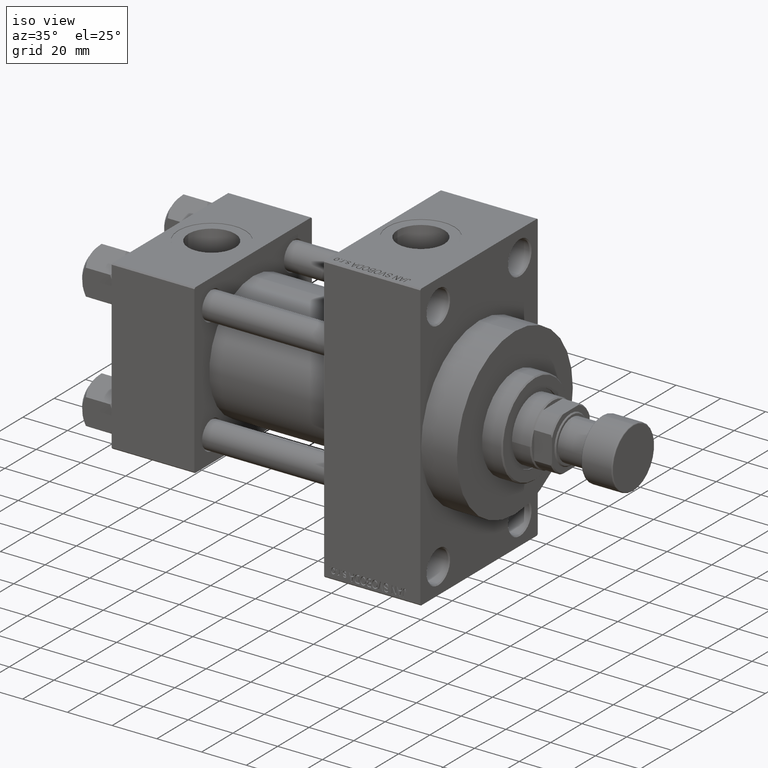
[diagram: clean part render]
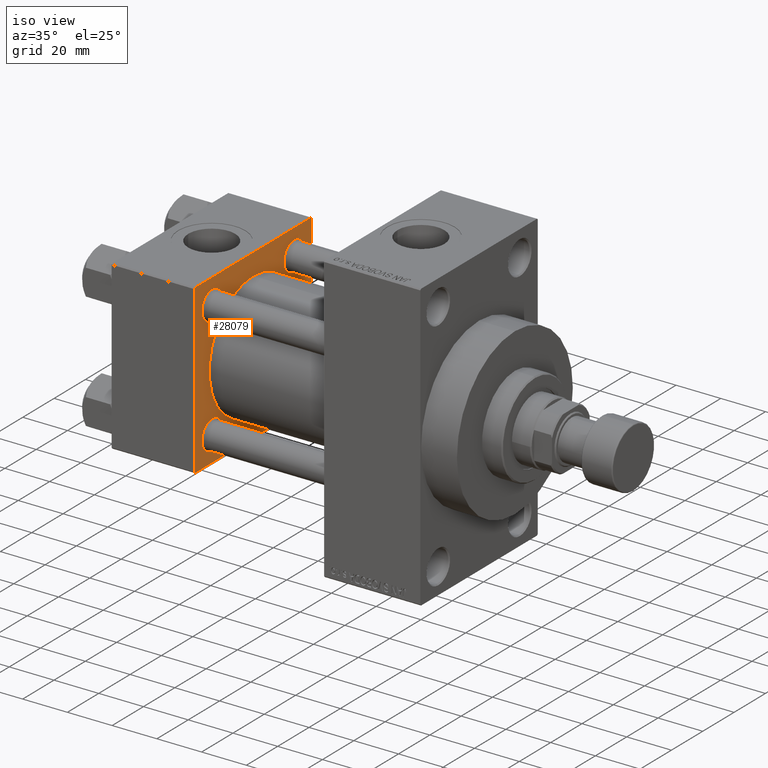
[diagram: same view with one face highlighted and labeled with its STEP entity id]
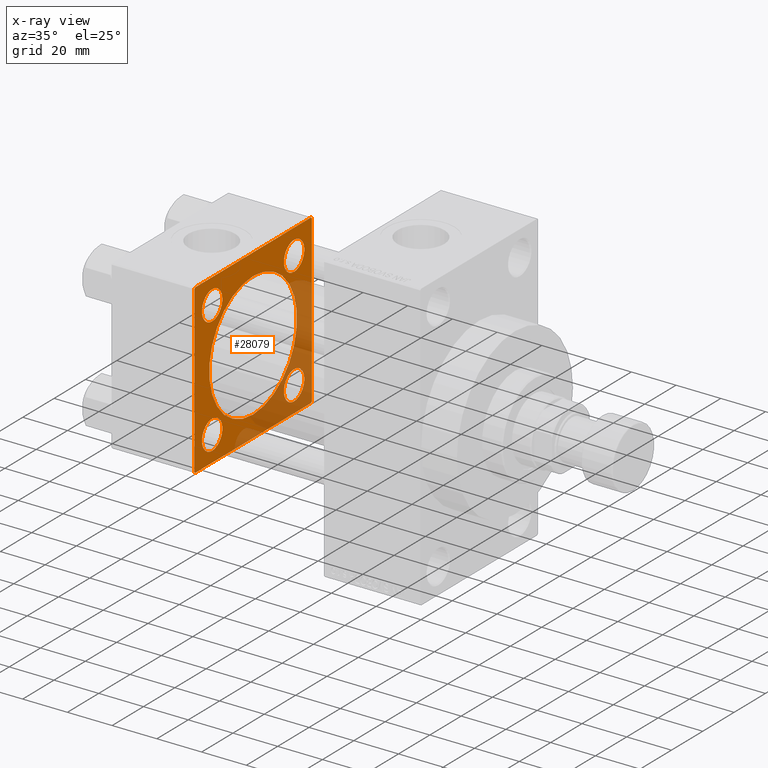
[diagram: x-ray of the same camera — body ghosted, the highlighted face saturated]
A machine part, iso view. The second image highlights one B-rep face of the part: STEP entity #28079.
The next image is the same camera in x-ray: the body ghosted, the highlighted face saturated — about 32% of this face is hidden behind the body in this view.
In plain terms, the highlighted planar face has unit normal (-1, 0, 0).
Its self-contained STEP definition (entity closure, byte-faithful):
#332 = CIRCLE ( 'NONE', #34187, 6.500000000000064837 ) ;
#607 = VECTOR ( 'NONE', #26519, 1000.000000000000000 ) ;
#1061 = ORIENTED_EDGE ( 'NONE', *, *, #39571, .T. ) ;
#1213 = CARTESIAN_POINT ( 'NONE',  ( 37.00000000000000000, 36.99999999999999289, 37.50000000000000000 ) ) ;
#1438 = CARTESIAN_POINT ( 'NONE',  ( 37.00000000000000000, 0.000000000000000000, 0.000000000000000000 ) ) ;
#1440 = VERTEX_POINT ( 'NONE', #46281 ) ;
#1653 = CARTESIAN_POINT ( 'NONE',  ( 37.00000000000000000, 37.49999999999999289, -37.50000000000000000 ) ) ;
#1906 = CARTESIAN_POINT ( 'NONE',  ( 37.00000000000000000, -26.14999999999999147, 26.15000000000000924 ) ) ;
#2672 = CIRCLE ( 'NONE', #38075, 6.500000000000002665 ) ;
#2782 = DIRECTION ( 'NONE',  ( 1.000000000000000000, -0.000000000000000000, 0.000000000000000000 ) ) ;
#3040 = CARTESIAN_POINT ( 'NONE',  ( 37.00000000000000000, -37.00000000000000711, 37.49999999999999289 ) ) ;
#3747 = CARTESIAN_POINT ( 'NONE',  ( 37.00000000000000000, 37.49999999999999289, -36.99999999999998579 ) ) ;
#4278 = AXIS2_PLACEMENT_3D ( 'NONE', #10001, #21571, #32659 ) ;
#4459 = ORIENTED_EDGE ( 'NONE', *, *, #4953, .F. ) ;
#4506 = VERTEX_POINT ( 'NONE', #32627 ) ;
#4953 = EDGE_CURVE ( 'NONE', #18720, #8059, #5469, .T. ) ;
#5325 = CARTESIAN_POINT ( 'NONE',  ( 37.00000000000000000, -37.50000000000000711, 36.99999999999999289 ) ) ;
#5469 = LINE ( 'NONE', #46200, #30318 ) ;
#6163 = FACE_BOUND ( 'NONE', #18886, .T. ) ;
#6183 = AXIS2_PLACEMENT_3D ( 'NONE', #36072, #42814, #10277 ) ;
#6199 = VERTEX_POINT ( 'NONE', #29537 ) ;
#6233 = EDGE_CURVE ( 'NONE', #6199, #38171, #2672, .T. ) ;
#6484 = DIRECTION ( 'NONE',  ( 0.000000000000000000, 0.000000000000000000, 1.000000000000000000 ) ) ;
#6685 = CIRCLE ( 'NONE', #41318, 28.00000000000000000 ) ;
#6864 = ORIENTED_EDGE ( 'NONE', *, *, #8165, .T. ) ;
#6879 = CARTESIAN_POINT ( 'NONE',  ( 37.00000000000000000, 26.14999999999999858, 26.15000000000000213 ) ) ;
#6968 = CARTESIAN_POINT ( 'NONE',  ( 37.00000000000000000, 36.99999999999997868, -37.50000000000000000 ) ) ;
#7701 = LINE ( 'NONE', #33718, #43656 ) ;
#7749 = VERTEX_POINT ( 'NONE', #17756 ) ;
#8059 = VERTEX_POINT ( 'NONE', #24944 ) ;
#8165 = EDGE_CURVE ( 'NONE', #11370, #25171, #38844, .T. ) ;
#8167 = EDGE_CURVE ( 'NONE', #13931, #4506, #13472, .T. ) ;
#8195 = DIRECTION ( 'NONE',  ( -0.000000000000000000, 0.000000000000000000, 1.000000000000000000 ) ) ;
#8286 = DIRECTION ( 'NONE',  ( 0.000000000000000000, 0.000000000000000000, 1.000000000000000000 ) ) ;
#8527 = ORIENTED_EDGE ( 'NONE', *, *, #6233, .T. ) ;
#9155 = CARTESIAN_POINT ( 'NONE',  ( 37.00000000000000000, -26.14999999999999147, 32.65000000000007674 ) ) ;
#9430 = EDGE_CURVE ( 'NONE', #36830, #20641, #10909, .T. ) ;
#9779 = PLANE ( 'NONE',  #13725 ) ;
#10001 = CARTESIAN_POINT ( 'NONE',  ( 37.00000000000000000, -26.14999999999999147, -26.15000000000000924 ) ) ;
#10174 = ORIENTED_EDGE ( 'NONE', *, *, #35787, .T. ) ;
#10277 = DIRECTION ( 'NONE',  ( 0.000000000000000000, 0.000000000000000000, 1.000000000000000000 ) ) ;
#10575 = DIRECTION ( 'NONE',  ( 0.000000000000000000, 0.000000000000000000, 1.000000000000000000 ) ) ;
#10909 = LINE ( 'NONE', #26102, #37883 ) ;
#11370 = VERTEX_POINT ( 'NONE', #21884 ) ;
#11688 = CIRCLE ( 'NONE', #36308, 6.500000000000002665 ) ;
#12157 = DIRECTION ( 'NONE',  ( -1.000000000000000000, 0.000000000000000000, -0.000000000000000000 ) ) ;
#12180 = DIRECTION ( 'NONE',  ( -1.000000000000000000, 0.000000000000000000, -0.000000000000000000 ) ) ;
#12948 = VERTEX_POINT ( 'NONE', #44176 ) ;
#13326 = ORIENTED_EDGE ( 'NONE', *, *, #8167, .F. ) ;
#13458 = EDGE_CURVE ( 'NONE', #7749, #14615, #332, .T. ) ;
#13472 = CIRCLE ( 'NONE', #19651, 28.00000000000000000 ) ;
#13725 = AXIS2_PLACEMENT_3D ( 'NONE', #1438, #15416, #8195 ) ;
#13931 = VERTEX_POINT ( 'NONE', #34863 ) ;
#14355 = CIRCLE ( 'NONE', #41290, 6.500000000000057732 ) ;
#14615 = VERTEX_POINT ( 'NONE', #9155 ) ;
#14674 = DIRECTION ( 'NONE',  ( 0.000000000000000000, 0.000000000000000000, 1.000000000000000000 ) ) ;
#15337 = CARTESIAN_POINT ( 'NONE',  ( 37.00000000000000000, -37.00000000000002132, -37.50000000000000711 ) ) ;
#15416 = DIRECTION ( 'NONE',  ( -1.000000000000000000, 0.000000000000000000, -0.000000000000000000 ) ) ;
#16174 = VECTOR ( 'NONE', #47659, 1000.000000000000114 ) ;
#17694 = ORIENTED_EDGE ( 'NONE', *, *, #23339, .F. ) ;
#17756 = CARTESIAN_POINT ( 'NONE',  ( 37.00000000000000000, -26.14999999999999147, 19.64999999999994529 ) ) ;
#18285 = CARTESIAN_POINT ( 'NONE',  ( 37.00000000000000000, 26.14999999999999858, -26.15000000000000213 ) ) ;
#18720 = VERTEX_POINT ( 'NONE', #36397 ) ;
#18886 = EDGE_LOOP ( 'NONE', ( #13326, #17694 ) ) ;
#19269 = FACE_BOUND ( 'NONE', #39138, .T. ) ;
#19651 = AXIS2_PLACEMENT_3D ( 'NONE', #35788, #2782, #32179 ) ;
#20641 = VERTEX_POINT ( 'NONE', #38149 ) ;
#20893 = CARTESIAN_POINT ( 'NONE',  ( 37.00000000000000000, -37.50000000000000711, 36.99999999999999289 ) ) ;
#20899 = CARTESIAN_POINT ( 'NONE',  ( 37.00000000000000000, 26.14999999999999858, 19.64999999999999858 ) ) ;
#21323 = ORIENTED_EDGE ( 'NONE', *, *, #31986, .T. ) ;
#21571 = DIRECTION ( 'NONE',  ( -1.000000000000000000, 0.000000000000000000, -0.000000000000000000 ) ) ;
#21582 = DIRECTION ( 'NONE',  ( -1.000000000000000000, 0.000000000000000000, -0.000000000000000000 ) ) ;
#21884 = CARTESIAN_POINT ( 'NONE',  ( 37.00000000000000000, -26.14999999999999147, -32.65000000000006963 ) ) ;
#22617 = EDGE_CURVE ( 'NONE', #25171, #11370, #14355, .T. ) ;
#22789 = DIRECTION ( 'NONE',  ( 0.000000000000000000, 0.000000000000000000, 1.000000000000000000 ) ) ;
#23045 = ORIENTED_EDGE ( 'NONE', *, *, #24966, .F. ) ;
#23339 = EDGE_CURVE ( 'NONE', #4506, #13931, #6685, .T. ) ;
#24098 = CIRCLE ( 'NONE', #34858, 6.500000000000002665 ) ;
#24359 = EDGE_CURVE ( 'NONE', #20641, #46097, #7701, .T. ) ;
#24455 = EDGE_LOOP ( 'NONE', ( #6864, #38426 ) ) ;
#24778 = CARTESIAN_POINT ( 'NONE',  ( 37.00000000000000000, 37.49999999999999289, 37.50000000000000000 ) ) ;
#24800 = CARTESIAN_POINT ( 'NONE',  ( 37.00000000000000000, -2.602085213965210642E-15, 0.000000000000000000 ) ) ;
#24944 = CARTESIAN_POINT ( 'NONE',  ( 37.00000000000000000, 37.49999999999999289, -36.99999999999998579 ) ) ;
#24957 = EDGE_LOOP ( 'NONE', ( #47288, #8527 ) ) ;
#24966 = EDGE_CURVE ( 'NONE', #42037, #46097, #37341, .T. ) ;
#25171 = VERTEX_POINT ( 'NONE', #39942 ) ;
#25375 = CIRCLE ( 'NONE', #34618, 6.500000000000002665 ) ;
#25380 = DIRECTION ( 'NONE',  ( 0.000000000000000000, 9.251858538542971581E-17, -1.000000000000000000 ) ) ;
#26102 = CARTESIAN_POINT ( 'NONE',  ( 37.00000000000000000, -37.50000000000000711, 37.49999999999999289 ) ) ;
#26519 = DIRECTION ( 'NONE',  ( 0.000000000000000000, -1.000000000000000000, -9.251858538542972814E-17 ) ) ;
#26523 = FACE_OUTER_BOUND ( 'NONE', #26629, .T. ) ;
#26629 = EDGE_LOOP ( 'NONE', ( #23045, #21323, #4459, #31446, #1061, #45182, #44674, #32393 ) ) ;
#26944 = VERTEX_POINT ( 'NONE', #35633 ) ;
#26989 = CIRCLE ( 'NONE', #6183, 6.500000000000064837 ) ;
#27324 = ORIENTED_EDGE ( 'NONE', *, *, #29880, .T. ) ;
#28079 = ADVANCED_FACE ( 'NONE', ( #44815, #19269, #31714, #38289, #6163, #26523 ), #9779, .F. ) ;
#28649 = DIRECTION ( 'NONE',  ( -1.000000000000000000, 0.000000000000000000, -0.000000000000000000 ) ) ;
#29006 = EDGE_CURVE ( 'NONE', #18720, #1440, #38521, .T. ) ;
#29537 = CARTESIAN_POINT ( 'NONE',  ( 37.00000000000000000, 26.14999999999999858, 32.65000000000001279 ) ) ;
#29775 = LINE ( 'NONE', #3747, #42985 ) ;
#29810 = EDGE_LOOP ( 'NONE', ( #39028, #10174 ) ) ;
#29880 = EDGE_CURVE ( 'NONE', #12948, #26944, #25375, .T. ) ;
#29955 = VECTOR ( 'NONE', #31070, 1000.000000000000114 ) ;
#30318 = VECTOR ( 'NONE', #45967, 1000.000000000000000 ) ;
#30854 = EDGE_CURVE ( 'NONE', #47336, #36830, #43549, .T. ) ;
#31070 = DIRECTION ( 'NONE',  ( 0.000000000000000000, -0.7071067811865474617, 0.7071067811865474617 ) ) ;
#31317 = DIRECTION ( 'NONE',  ( -1.000000000000000000, 0.000000000000000000, -0.000000000000000000 ) ) ;
#31339 = ORIENTED_EDGE ( 'NONE', *, *, #39020, .T. ) ;
#31446 = ORIENTED_EDGE ( 'NONE', *, *, #29006, .T. ) ;
#31714 = FACE_BOUND ( 'NONE', #29810, .T. ) ;
#31986 = EDGE_CURVE ( 'NONE', #42037, #8059, #29775, .T. ) ;
#32179 = DIRECTION ( 'NONE',  ( 0.000000000000000000, 0.000000000000000000, 1.000000000000000000 ) ) ;
#32393 = ORIENTED_EDGE ( 'NONE', *, *, #24359, .T. ) ;
#32627 = CARTESIAN_POINT ( 'NONE',  ( 37.00000000000000000, 8.269258236473776482E-16, -28.00000000000000000 ) ) ;
#32659 = DIRECTION ( 'NONE',  ( 0.000000000000000000, 0.000000000000000000, 1.000000000000000000 ) ) ;
#32992 = DIRECTION ( 'NONE',  ( -1.000000000000000000, 0.000000000000000000, -0.000000000000000000 ) ) ;
#33718 = CARTESIAN_POINT ( 'NONE',  ( 37.00000000000000000, -37.00000000000002132, -37.50000000000000711 ) ) ;
#34187 = AXIS2_PLACEMENT_3D ( 'NONE', #1906, #31317, #42853 ) ;
#34570 = DIRECTION ( 'NONE',  ( 0.000000000000000000, 0.000000000000000000, 1.000000000000000000 ) ) ;
#34618 = AXIS2_PLACEMENT_3D ( 'NONE', #18285, #32992, #14674 ) ;
#34858 = AXIS2_PLACEMENT_3D ( 'NONE', #42025, #12180, #34570 ) ;
#34863 = CARTESIAN_POINT ( 'NONE',  ( 37.00000000000000000, -2.602085213965210642E-15, 28.00000000000000000 ) ) ;
#35633 = CARTESIAN_POINT ( 'NONE',  ( 37.00000000000000000, 26.14999999999999858, -19.65000000000000213 ) ) ;
#35787 = EDGE_CURVE ( 'NONE', #14615, #7749, #26989, .T. ) ;
#35788 = CARTESIAN_POINT ( 'NONE',  ( 37.00000000000000000, -2.602085213965210642E-15, 0.000000000000000000 ) ) ;
#36072 = CARTESIAN_POINT ( 'NONE',  ( 37.00000000000000000, -26.14999999999999147, 26.15000000000000924 ) ) ;
#36308 = AXIS2_PLACEMENT_3D ( 'NONE', #45398, #12157, #8286 ) ;
#36374 = EDGE_CURVE ( 'NONE', #38171, #6199, #11688, .T. ) ;
#36397 = CARTESIAN_POINT ( 'NONE',  ( 37.00000000000000000, 37.49999999999999289, 37.00000000000000000 ) ) ;
#36750 = DIRECTION ( 'NONE',  ( -0.000000000000000000, 0.7071067811865474617, 0.7071067811865474617 ) ) ;
#36830 = VERTEX_POINT ( 'NONE', #5325 ) ;
#37341 = LINE ( 'NONE', #1653, #607 ) ;
#37883 = VECTOR ( 'NONE', #25380, 1000.000000000000000 ) ;
#38075 = AXIS2_PLACEMENT_3D ( 'NONE', #6879, #21582, #22789 ) ;
#38149 = CARTESIAN_POINT ( 'NONE',  ( 37.00000000000000000, -37.50000000000000000, -37.00000000000003553 ) ) ;
#38171 = VERTEX_POINT ( 'NONE', #20899 ) ;
#38289 = FACE_BOUND ( 'NONE', #24957, .T. ) ;
#38426 = ORIENTED_EDGE ( 'NONE', *, *, #22617, .T. ) ;
#38521 = LINE ( 'NONE', #1213, #29955 ) ;
#38844 = CIRCLE ( 'NONE', #4278, 6.500000000000057732 ) ;
#39020 = EDGE_CURVE ( 'NONE', #26944, #12948, #24098, .T. ) ;
#39028 = ORIENTED_EDGE ( 'NONE', *, *, #13458, .T. ) ;
#39138 = EDGE_LOOP ( 'NONE', ( #27324, #31339 ) ) ;
#39571 = EDGE_CURVE ( 'NONE', #1440, #47336, #43084, .T. ) ;
#39942 = CARTESIAN_POINT ( 'NONE',  ( 37.00000000000000000, -26.14999999999999147, -19.64999999999995239 ) ) ;
#41290 = AXIS2_PLACEMENT_3D ( 'NONE', #46962, #28649, #10575 ) ;
#41318 = AXIS2_PLACEMENT_3D ( 'NONE', #24800, #43336, #6484 ) ;
#42025 = CARTESIAN_POINT ( 'NONE',  ( 37.00000000000000000, 26.14999999999999858, -26.15000000000000213 ) ) ;
#42037 = VERTEX_POINT ( 'NONE', #6968 ) ;
#42814 = DIRECTION ( 'NONE',  ( -1.000000000000000000, 0.000000000000000000, -0.000000000000000000 ) ) ;
#42853 = DIRECTION ( 'NONE',  ( 0.000000000000000000, 0.000000000000000000, 1.000000000000000000 ) ) ;
#42985 = VECTOR ( 'NONE', #36750, 1000.000000000000114 ) ;
#43084 = LINE ( 'NONE', #24778, #47180 ) ;
#43336 = DIRECTION ( 'NONE',  ( 1.000000000000000000, -0.000000000000000000, 0.000000000000000000 ) ) ;
#43549 = LINE ( 'NONE', #20893, #16174 ) ;
#43656 = VECTOR ( 'NONE', #44320, 1000.000000000000000 ) ;
#44176 = CARTESIAN_POINT ( 'NONE',  ( 37.00000000000000000, 26.14999999999999858, -32.65000000000000568 ) ) ;
#44320 = DIRECTION ( 'NONE',  ( 0.000000000000000000, 0.7071067811865524577, -0.7071067811865426878 ) ) ;
#44674 = ORIENTED_EDGE ( 'NONE', *, *, #9430, .T. ) ;
#44815 = FACE_BOUND ( 'NONE', #24455, .T. ) ;
#45182 = ORIENTED_EDGE ( 'NONE', *, *, #30854, .T. ) ;
#45398 = CARTESIAN_POINT ( 'NONE',  ( 37.00000000000000000, 26.14999999999999858, 26.15000000000000213 ) ) ;
#45967 = DIRECTION ( 'NONE',  ( 0.000000000000000000, 0.000000000000000000, -1.000000000000000000 ) ) ;
#46005 = DIRECTION ( 'NONE',  ( 0.000000000000000000, -1.000000000000000000, -9.251858538542971581E-17 ) ) ;
#46097 = VERTEX_POINT ( 'NONE', #15337 ) ;
#46200 = CARTESIAN_POINT ( 'NONE',  ( 37.00000000000000000, 37.49999999999999289, 37.50000000000000000 ) ) ;
#46281 = CARTESIAN_POINT ( 'NONE',  ( 37.00000000000000000, 36.99999999999999289, 37.50000000000000000 ) ) ;
#46962 = CARTESIAN_POINT ( 'NONE',  ( 37.00000000000000000, -26.14999999999999147, -26.15000000000000924 ) ) ;
#47180 = VECTOR ( 'NONE', #46005, 1000.000000000000000 ) ;
#47288 = ORIENTED_EDGE ( 'NONE', *, *, #36374, .T. ) ;
#47336 = VERTEX_POINT ( 'NONE', #3040 ) ;
#47659 = DIRECTION ( 'NONE',  ( -0.000000000000000000, -0.7071067811865474617, -0.7071067811865474617 ) ) ;